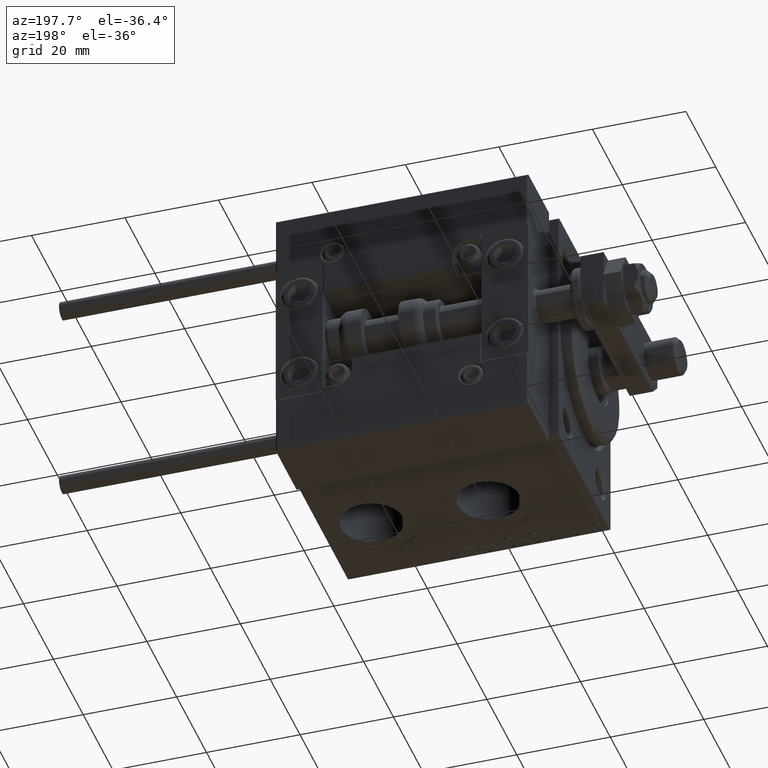
[diagram: clean part render]
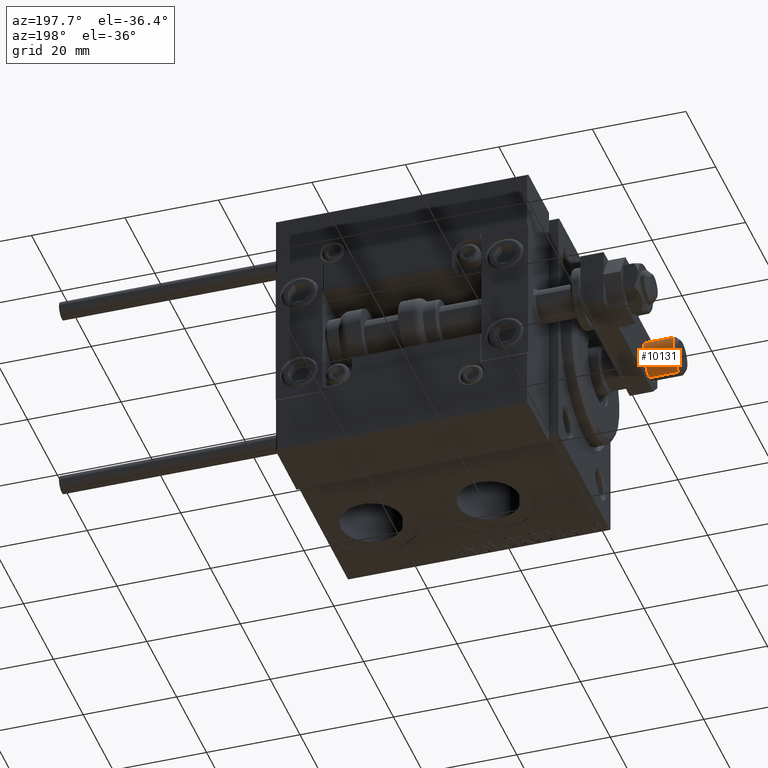
[diagram: same view with one face highlighted and labeled with its STEP entity id]
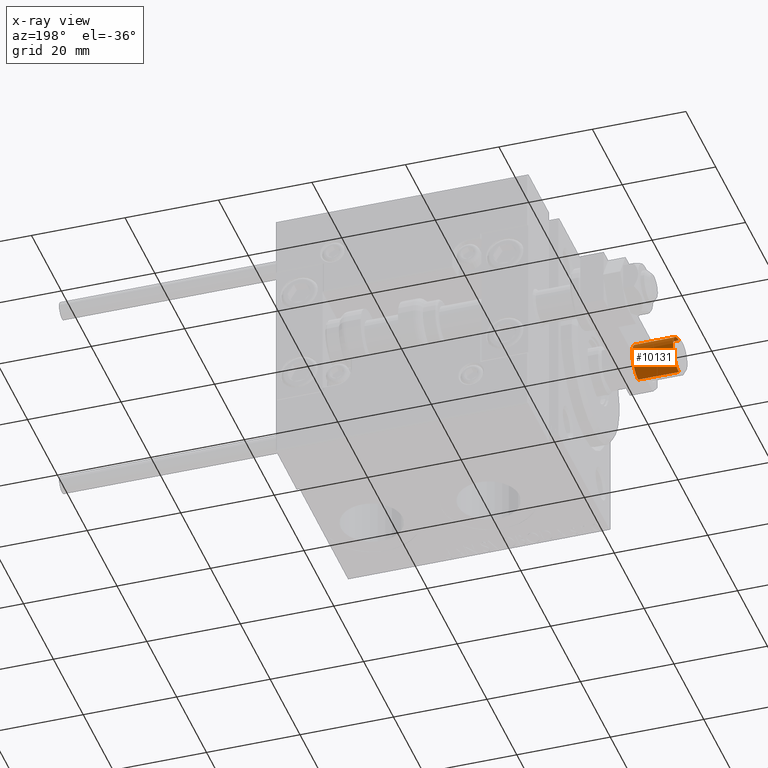
[diagram: x-ray of the same camera — body ghosted, the highlighted face saturated]
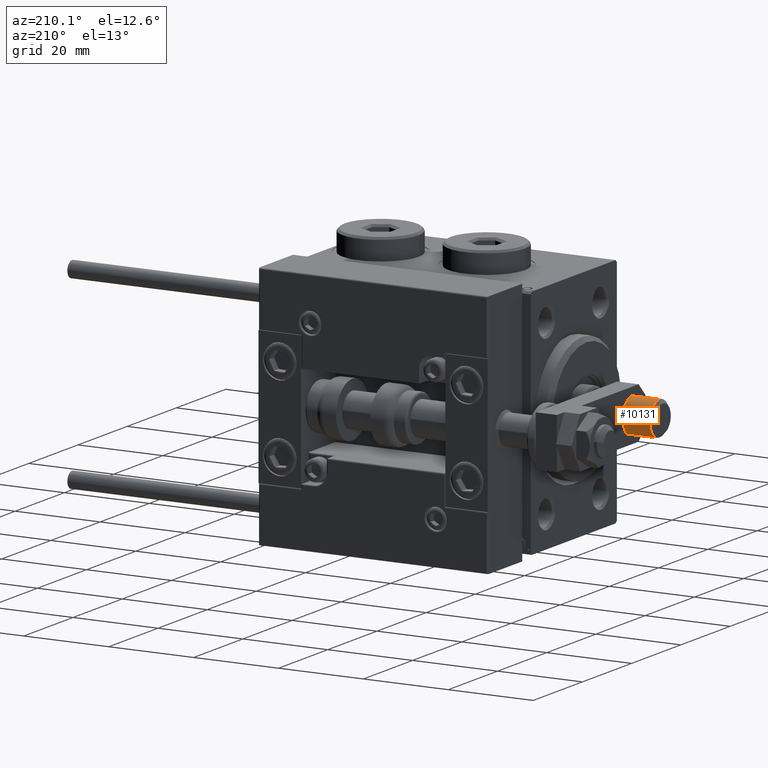
[diagram: same view with one face highlighted and labeled with its STEP entity id]
A machine part, auxiliary view. The second image highlights one B-rep face of the part: STEP entity #10131.
The next image is the same camera in x-ray: the body ghosted, the highlighted face saturated — about 0% of this face is hidden behind the body in this view.
A second angle (auxiliary view) of the same face is appended — the face is thin or edge-on in the first view.
In plain terms, the highlighted cylindrical surface (edge-blend (fillet) strip) has radius 4 mm, axis along (-1, -0, 0).
Its self-contained STEP definition (entity closure, byte-faithful):
#6347 = EDGE_CURVE ( 'NONE', #16329, #13573, #14930, .T. ) ;
#10131 = ADVANCED_FACE ( 'NONE', ( #30103 ), #10547, .T. ) ;
#10547 = CYLINDRICAL_SURFACE ( 'NONE', #41298, 4.000000000000000000 ) ;
#12084 = CARTESIAN_POINT ( 'NONE',  ( 0.000000000000000000, 0.000000000000000000, 0.7999999999999986011 ) ) ;
#12123 = VECTOR ( 'NONE', #52122, 1000.000000000000000 ) ;
#13093 = VECTOR ( 'NONE', #47433, 1000.000000000000000 ) ;
#13344 = DIRECTION ( 'NONE',  ( 0.000000000000000000, 0.000000000000000000, 1.000000000000000000 ) ) ;
#13444 = ORIENTED_EDGE ( 'NONE', *, *, #42937, .T. ) ;
#13573 = VERTEX_POINT ( 'NONE', #15544 ) ;
#13616 = EDGE_CURVE ( 'NONE', #39171, #26929, #35618, .T. ) ;
#14930 = LINE ( 'NONE', #19206, #12123 ) ;
#15544 = CARTESIAN_POINT ( 'NONE',  ( 4.000000000000000000, 4.898587196589412829E-16, 0.7999999999999986011 ) ) ;
#16329 = VERTEX_POINT ( 'NONE', #29623 ) ;
#17355 = CARTESIAN_POINT ( 'NONE',  ( 0.000000000000000000, 0.000000000000000000, 9.500000000000000000 ) ) ;
#19035 = CARTESIAN_POINT ( 'NONE',  ( -4.000000000000000000, 0.000000000000000000, 9.500000000000000000 ) ) ;
#19206 = CARTESIAN_POINT ( 'NONE',  ( 4.000000000000000000, 4.898587196589412829E-16, 9.500000000000000000 ) ) ;
#20621 = CARTESIAN_POINT ( 'NONE',  ( -4.000000000000000000, 0.000000000000000000, 9.500000000000000000 ) ) ;
#26929 = VERTEX_POINT ( 'NONE', #27253 ) ;
#27220 = AXIS2_PLACEMENT_3D ( 'NONE', #12084, #44752, #28396 ) ;
#27253 = CARTESIAN_POINT ( 'NONE',  ( -4.000000000000000000, 0.000000000000000000, 0.7999999999999986011 ) ) ;
#28396 = DIRECTION ( 'NONE',  ( 1.000000000000000000, 0.000000000000000000, 0.000000000000000000 ) ) ;
#29623 = CARTESIAN_POINT ( 'NONE',  ( 4.000000000000000000, 4.898587196589412829E-16, 9.500000000000000000 ) ) ;
#29664 = DIRECTION ( 'NONE',  ( 1.000000000000000000, 0.000000000000000000, 0.000000000000000000 ) ) ;
#30103 = FACE_OUTER_BOUND ( 'NONE', #44337, .T. ) ;
#30365 = DIRECTION ( 'NONE',  ( -0.000000000000000000, -0.000000000000000000, -1.000000000000000000 ) ) ;
#31990 = ORIENTED_EDGE ( 'NONE', *, *, #13616, .F. ) ;
#33236 = EDGE_CURVE ( 'NONE', #16329, #39171, #41935, .T. ) ;
#34080 = CIRCLE ( 'NONE', #27220, 4.000000000000000000 ) ;
#34907 = CARTESIAN_POINT ( 'NONE',  ( 0.000000000000000000, 0.000000000000000000, 9.500000000000000000 ) ) ;
#35618 = LINE ( 'NONE', #19035, #13093 ) ;
#39171 = VERTEX_POINT ( 'NONE', #20621 ) ;
#39362 = AXIS2_PLACEMENT_3D ( 'NONE', #17355, #13344, #29664 ) ;
#41298 = AXIS2_PLACEMENT_3D ( 'NONE', #34907, #30365, #46452 ) ;
#41766 = ORIENTED_EDGE ( 'NONE', *, *, #6347, .T. ) ;
#41935 = CIRCLE ( 'NONE', #39362, 4.000000000000000000 ) ;
#42154 = ORIENTED_EDGE ( 'NONE', *, *, #33236, .F. ) ;
#42937 = EDGE_CURVE ( 'NONE', #13573, #26929, #34080, .T. ) ;
#44337 = EDGE_LOOP ( 'NONE', ( #42154, #41766, #13444, #31990 ) ) ;
#44752 = DIRECTION ( 'NONE',  ( -0.000000000000000000, -0.000000000000000000, 1.000000000000000000 ) ) ;
#46452 = DIRECTION ( 'NONE',  ( -1.000000000000000000, 0.000000000000000000, 0.000000000000000000 ) ) ;
#47433 = DIRECTION ( 'NONE',  ( -0.000000000000000000, -0.000000000000000000, -1.000000000000000000 ) ) ;
#52122 = DIRECTION ( 'NONE',  ( -0.000000000000000000, -0.000000000000000000, -1.000000000000000000 ) ) ;